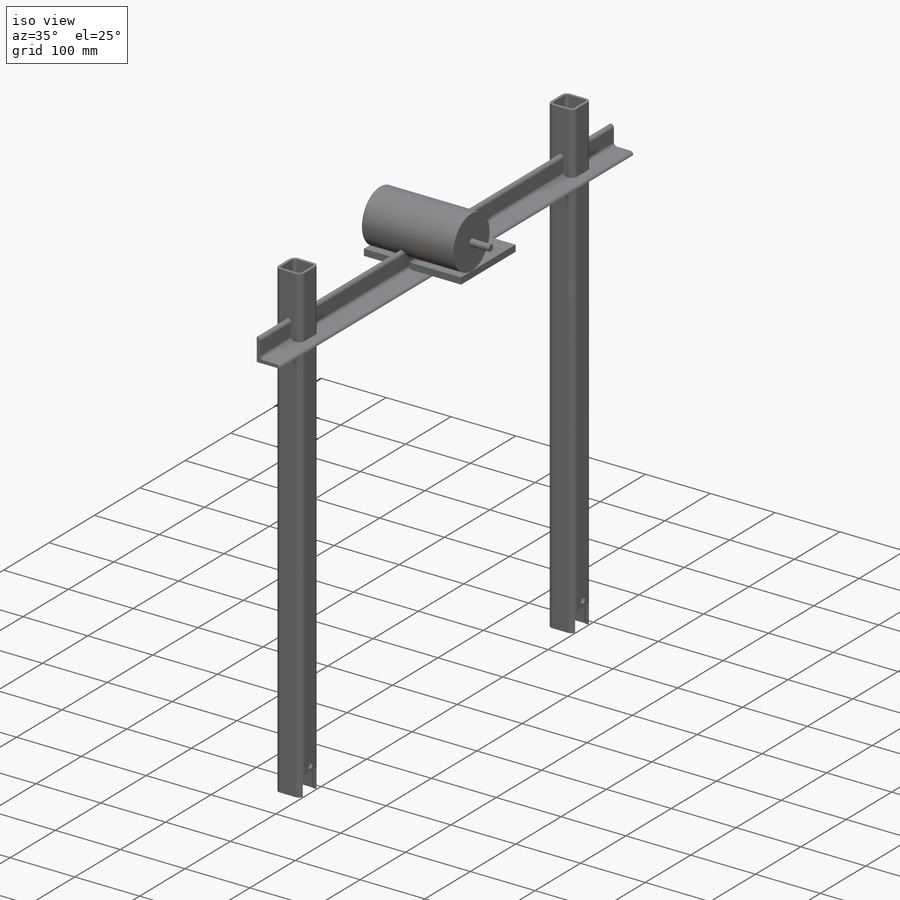
[diagram: iso view]
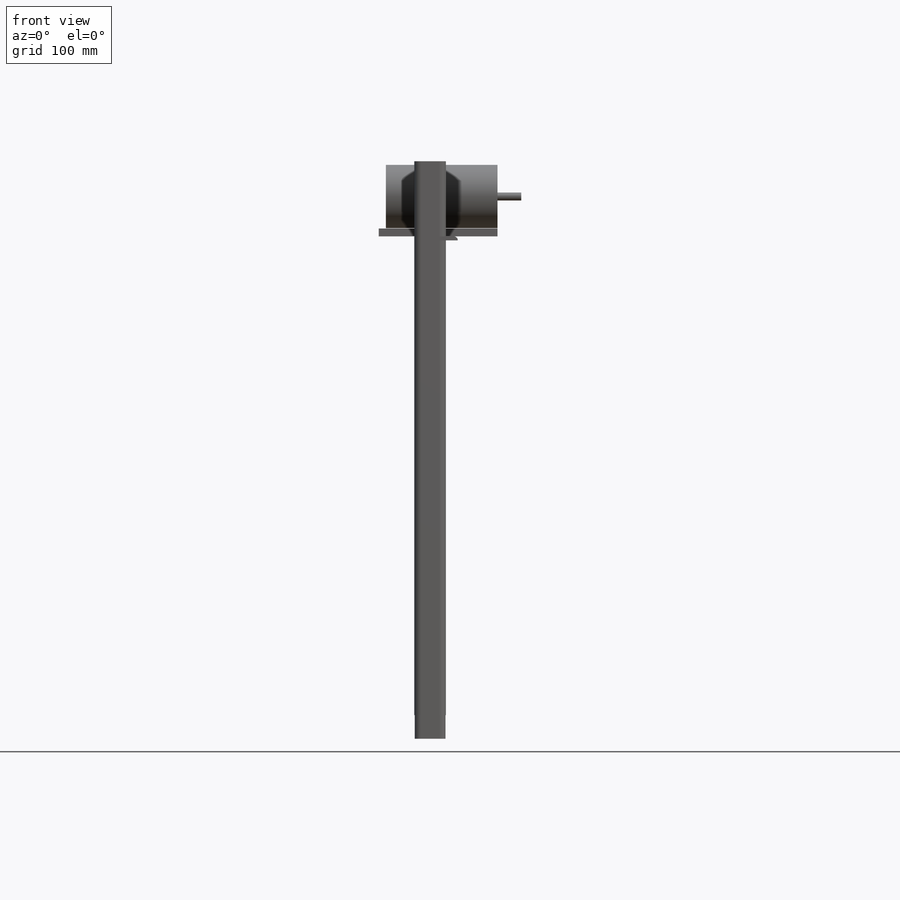
[diagram: front view]
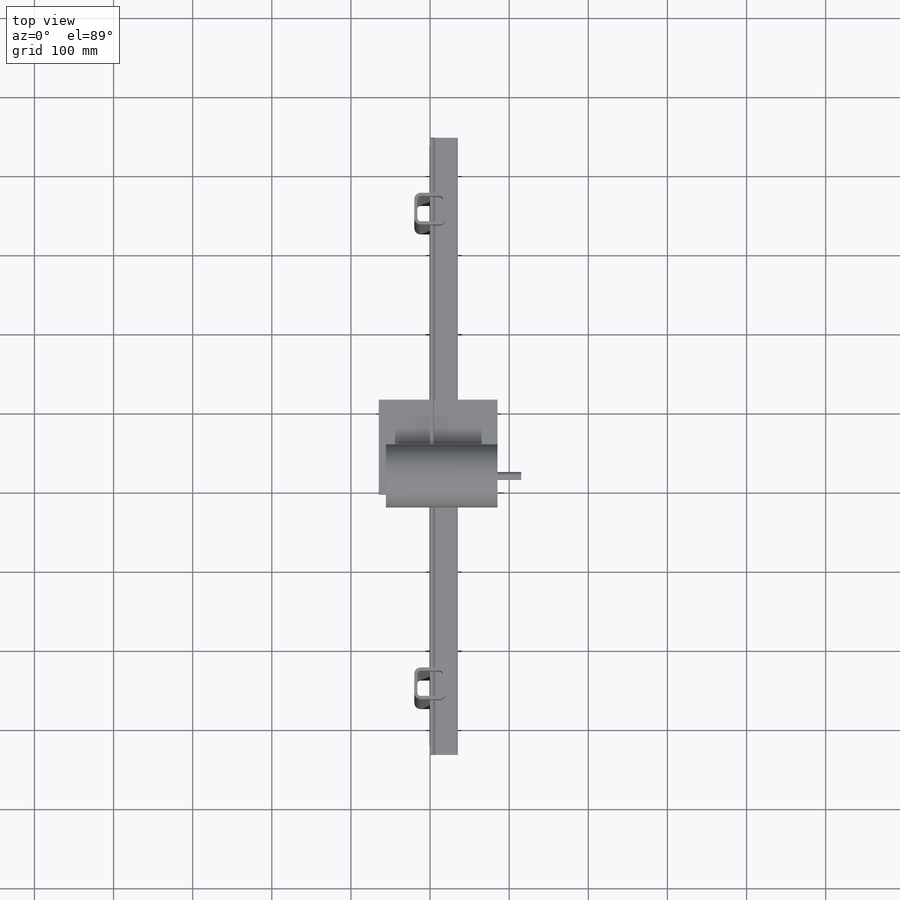
[diagram: top view]
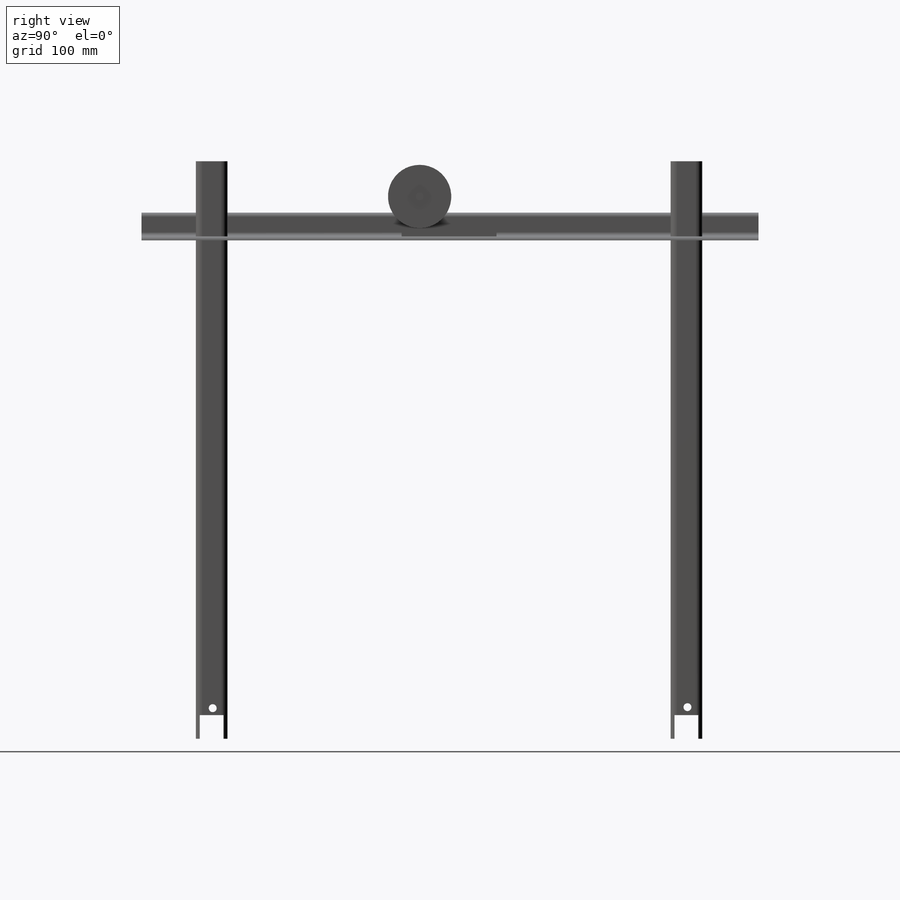
[diagram: right view]
SOLIDWORKS PART (.sldprt)
format: sldprt  version: not decoded by parser v0  size: 375,808 bytes
history: native  units: mm
features: sketch x10, plane x3, cut_extrude x3, extrude x3, material x1 (+12 scaffold rows collapsed)
feature tree (32):
  scaffold x12  (default folders/planes/origin — collapsed)
  material  "Material <not specified>"
  sketch  "Sketch1"  dims[c1.D1=700.0mm c1.D2=700.0mm c1.D3=600.0mm c1.D4=100.0mm c1.D5=570.0mm c2.D4=30.0mm c2.D5=30.0mm]
  plane  "Plane1"
  sketch  "Sketch11"  dims[c1.D1=6.35mm c1.D2=6.35mm c1.D3=6.35mm c1.D4=6.35mm c1.D5=6.35mm c1.D6=6.35mm c1.D7=6.35mm c1.D8=6.35mm c2.D1=6.604mm c2.D2=6.604mm c2.D3=6.604mm c2.D4=6.604mm c3.D1=8.0mm c3.Thickness=4.0mm c3.D4=12.9032mm c3.D5=12.9286mm c3.V_leg=40.0mm c3.H_leg=20.0mm c4.D4=50.3428mm c4.D5=50.8508mm c5.D4=~41.274964mm c5.D5=~41.274964mm]
  plane  "Plane3"
  sketch  "Sketch13"  dims[c1.D1=6.35mm c1.D2=6.35mm c1.D3=6.35mm c1.D4=6.35mm c1.D5=6.35mm c1.D6=6.35mm c1.D7=6.35mm c1.D8=6.35mm c2.D1=6.604mm c2.D2=6.604mm c2.D3=6.604mm c2.D4=6.604mm c3.D1=8.0mm c3.Thickness=4.0mm c3.D4=12.9032mm c3.D5=12.9286mm c3.V_leg=40.0mm c3.H_leg=20.0mm c4.D4=50.3428mm c4.D5=50.8508mm c5.D4=~41.274964mm c5.D5=~41.274964mm]
  sketch  "Sketch14"  dims[D1=30.0mm D2=30.0mm D3=3.0mm]
  cut_extrude  "Cut-Extrude1"  Depth=45mm
  sketch  "Sketch15"  dims[D1=30.0mm D2=3.0mm]
  cut_extrude  "Cut-Extrude2"  Depth=45mm
  plane  "Plane8"
  sketch  "Sketch110"  dims[c1.D2=3.175mm c1.Radius_1=5.0mm c1.Radius_2=3.175mm c2.D2=5.0mm c2.D3=3.0mm c2.V_leg=50.8mm c2.H_leg=50.8mm c2.Thickness=3.175mm c2.D1=5.0mm c3.D3=46.0375mm c3.V_leg=25.4mm c3.H_leg=25.0mm c3.Flat_wid=~0.00508mm c4.D3=6.35mm c4.D2=0.005mm c5.D3=35.0mm]
  sketch  "Sketch111"  dims[c1.D1=100.0mm c1.D2=100.0mm c2.D1=120.0mm c2.D2=150.0mm c2.D3=240.0mm]
  extrude  "Boss-Extrude1"  Depth=10mm
  sketch  "Sketch112"  dims[D1=80.0mm]
  extrude  "Boss-Extrude2"  Depth=141mm
  sketch  "Sketch113"  dims[D1=5.6462mm]
  extrude  "Boss-Extrude3"  Depth=30mm
  sketch  "Sketch114"  dims[c1.D2=10.0mm c1.D3=~8.578776mm c1.D4=10.0mm c2.D3=10.0mm c2.D1=10.0mm c3.D3=600.0mm c3.D5=600.0mm c3.D6=600.0mm c3.D7=~591.501795mm c4.D6=~591.501795mm c4.D7=~583.501795mm c5.D6=~583.501795mm c5.D5=600.0mm c5.D3=600.0mm]
  cut_extrude  "Cut-Extrude3"  Depth=105mm
decode coverage: 16 of 16 modeling features carry decoded parameters
note: ~ marks probable driven/reference dimensions
note: suppression state not decoded; provenance and decode notes live in map.json
